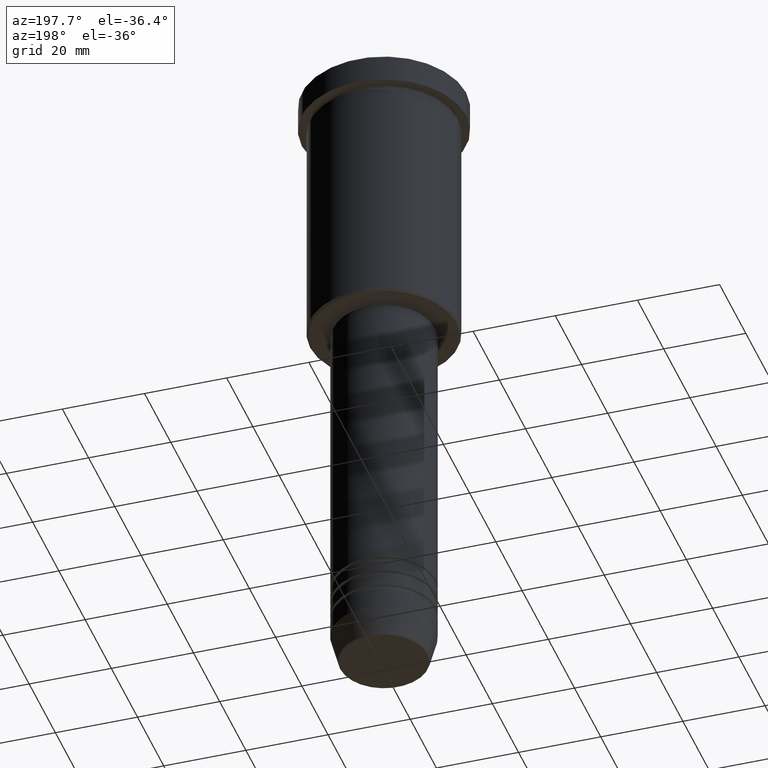
[diagram: clean part render]
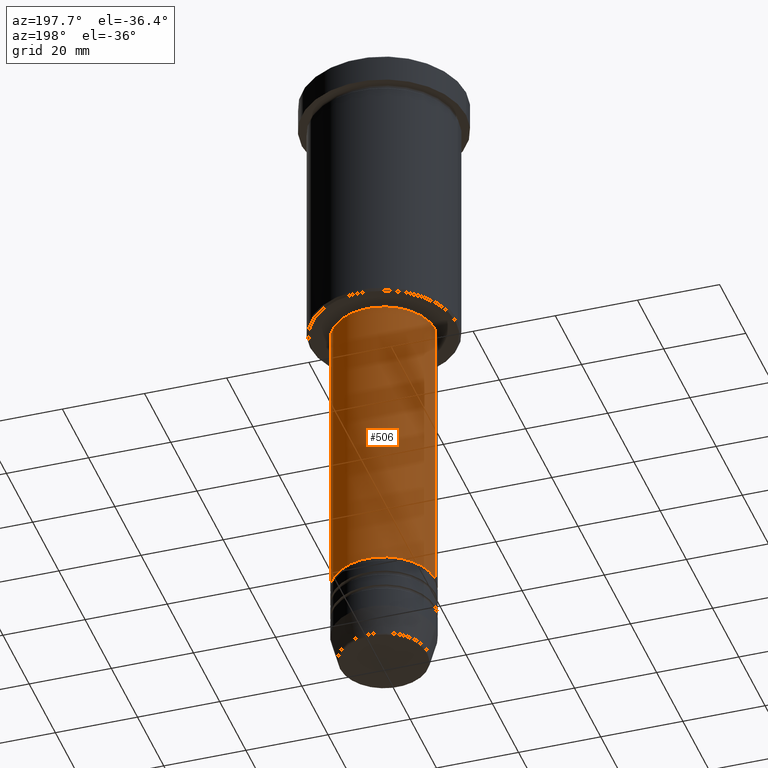
[diagram: same view with one face highlighted and labeled with its STEP entity id]
A machine part, auxiliary view. The second image highlights one B-rep face of the part: STEP entity #506.
In plain terms, the highlighted cylindrical surface (partial cylindrical patch) has radius 12.5 mm, axis along (-0, -0, 1).
Its self-contained STEP definition (entity closure, byte-faithful):
#24 = LINE ( 'NONE', #1030, #555 ) ;
#74 = DIRECTION ( 'NONE',  ( 1.000000000000000000, 0.000000000000000000, 0.000000000000000000 ) ) ;
#87 = EDGE_CURVE ( 'NONE', #218, #709, #431, .T. ) ;
#218 = VERTEX_POINT ( 'NONE', #633 ) ;
#219 = LINE ( 'NONE', #502, #1068 ) ;
#228 = DIRECTION ( 'NONE',  ( -0.000000000000000000, -0.000000000000000000, 1.000000000000000000 ) ) ;
#249 = VERTEX_POINT ( 'NONE', #845 ) ;
#256 = ORIENTED_EDGE ( 'NONE', *, *, #340, .T. ) ;
#268 = AXIS2_PLACEMENT_3D ( 'NONE', #831, #1100, #1105 ) ;
#340 = EDGE_CURVE ( 'NONE', #709, #615, #24, .T. ) ;
#376 = EDGE_CURVE ( 'NONE', #249, #615, #1147, .T. ) ;
#409 = CARTESIAN_POINT ( 'NONE',  ( 0.000000000000000000, 0.000000000000000000, 0.000000000000000000 ) ) ;
#413 = CARTESIAN_POINT ( 'NONE',  ( 0.000000000000000000, 0.000000000000000000, -67.00000000000002842 ) ) ;
#431 = CIRCLE ( 'NONE', #268, 12.50000000000000000 ) ;
#493 = DIRECTION ( 'NONE',  ( -0.000000000000000000, -0.000000000000000000, 1.000000000000000000 ) ) ;
#502 = CARTESIAN_POINT ( 'NONE',  ( 12.50000000000000000, 0.000000000000000000, 0.000000000000000000 ) ) ;
#506 = ADVANCED_FACE ( 'NONE', ( #972 ), #596, .T. ) ;
#519 = DIRECTION ( 'NONE',  ( 1.000000000000000000, 0.000000000000000000, 0.000000000000000000 ) ) ;
#555 = VECTOR ( 'NONE', #228, 1000.000000000000000 ) ;
#596 = CYLINDRICAL_SURFACE ( 'NONE', #617, 12.50000000000000000 ) ;
#615 = VERTEX_POINT ( 'NONE', #930 ) ;
#617 = AXIS2_PLACEMENT_3D ( 'NONE', #409, #772, #74 ) ;
#625 = EDGE_CURVE ( 'NONE', #218, #249, #219, .T. ) ;
#633 = CARTESIAN_POINT ( 'NONE',  ( 12.50000000000000000, 0.000000000000000000, -138.9999999999999716 ) ) ;
#635 = AXIS2_PLACEMENT_3D ( 'NONE', #413, #690, #519 ) ;
#690 = DIRECTION ( 'NONE',  ( -0.000000000000000000, -0.000000000000000000, 1.000000000000000000 ) ) ;
#709 = VERTEX_POINT ( 'NONE', #1132 ) ;
#772 = DIRECTION ( 'NONE',  ( -0.000000000000000000, -0.000000000000000000, 1.000000000000000000 ) ) ;
#831 = CARTESIAN_POINT ( 'NONE',  ( 0.000000000000000000, 0.000000000000000000, -138.9999999999999716 ) ) ;
#845 = CARTESIAN_POINT ( 'NONE',  ( 12.50000000000000000, 0.000000000000000000, -67.00000000000002842 ) ) ;
#848 = ORIENTED_EDGE ( 'NONE', *, *, #376, .F. ) ;
#899 = EDGE_LOOP ( 'NONE', ( #992, #256, #848, #966 ) ) ;
#930 = CARTESIAN_POINT ( 'NONE',  ( -12.50000000000000000, 1.530808498934191521E-15, -67.00000000000002842 ) ) ;
#966 = ORIENTED_EDGE ( 'NONE', *, *, #625, .F. ) ;
#972 = FACE_OUTER_BOUND ( 'NONE', #899, .T. ) ;
#992 = ORIENTED_EDGE ( 'NONE', *, *, #87, .T. ) ;
#1030 = CARTESIAN_POINT ( 'NONE',  ( -12.50000000000000000, 1.530808498934191521E-15, 0.000000000000000000 ) ) ;
#1068 = VECTOR ( 'NONE', #493, 1000.000000000000000 ) ;
#1100 = DIRECTION ( 'NONE',  ( -0.000000000000000000, -0.000000000000000000, 1.000000000000000000 ) ) ;
#1105 = DIRECTION ( 'NONE',  ( 1.000000000000000000, 0.000000000000000000, 0.000000000000000000 ) ) ;
#1132 = CARTESIAN_POINT ( 'NONE',  ( -12.50000000000000000, 1.530808498934191521E-15, -138.9999999999999716 ) ) ;
#1147 = CIRCLE ( 'NONE', #635, 12.50000000000000000 ) ;